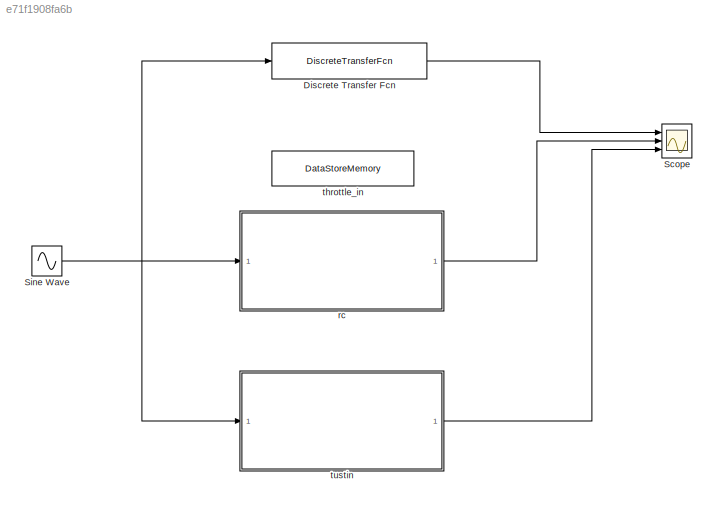
MODEL slx_e71f1908fa6b
KIND model
CONFIG AbsTol = auto
CONFIG EnableMultiTasking = off
CONFIG FixedStep = 0.004
CONFIG MaxStep = auto
CONFIG MinStep = auto
CONFIG RelTol = 1e-3
CONFIG SampleTimeConstraint = Unconstrained
CONFIG Solver = FixedStepAuto
CONFIG SolverName = FixedStepAuto
CONFIG StartTime = 0.0
CONFIG StopTime = 10.0
BLOCK [DiscreteTransferFcn] Discrete Transfer Fcn
  Denominator = ftz.den{1:end}
  InputPortMap = u0
  Numerator = ftz.num{1:end}
  Ports = [1, 1]
BLOCK [Scope] Scope
  Floating = off
  NumInputPorts = 3
  Ports = [3]
  ScopeSpecificationString = Simulink.scopes.TimeScopeBlockCfg('CurrentConfiguration', extmgr.ConfigurationSet(extmgr.Configuration('Core','General UI',true),extmgr.Configuration('Core','Source UI',true),extmgr.Configuration('Sources','WiredSimulink',true),extmgr.Configuration('Visuals','Time Domain',true,'SerializedDisplays',{struct('MinYLimReal','-0.92334','MaxYLimReal','0.95776','YLabelReal','','MinYLimMag','0.00000','MaxY...<+1788ch>
BLOCK [Sin] Sine Wave
  Frequency = 2*pi*40
  Ports = [0, 1]
  SampleTime = 0
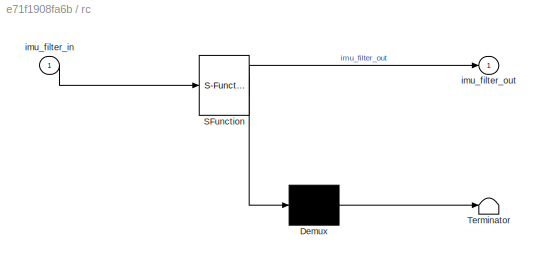
BLOCK [SubSystem] rc
  ErrorFcn = Stateflow.Translate.translate
  PermitHierarchicalResolution = ExplicitOnly
  Ports = [1, 1]
  RequestExecContextInheritance = off
  SFBlockType = MATLAB Function
  TreatAsAtomicUnit = on
BLOCK [Demux] rc/ Demux 
  Outputs = 1
  Ports = [1, 1]
BLOCK [S-Function] rc/ SFunction 
  EnableBusSupport = on
  FunctionName = sf_sfun
  PortCounts = [1 2]
  Ports = [1, 2]
  SFcnIsStateOwnerBlock = off
  SFunctionDeploymentMode = off
  Tag = Stateflow S-Function 2
BLOCK [Terminator] rc/ Terminator 
BLOCK [Inport] rc/imu_filter_in
  IconDisplay = Port number
BLOCK [Outport] rc/imu_filter_out
  IconDisplay = Port number
  VectorParamsAs1DForOutWhenUnconnected = off
BLOCK [DataStoreMemory] throttle_in
  DataStoreName = imu_filt
  InitialValue = imu_filt
  OutDataTypeStr = double
  ReadBeforeWriteMsg = warning
  ShowAdditionalParam = off
  SignalType = real
  VectorParams1D = off
  WriteAfterReadMsg = warning
  WriteAfterWriteMsg = warning
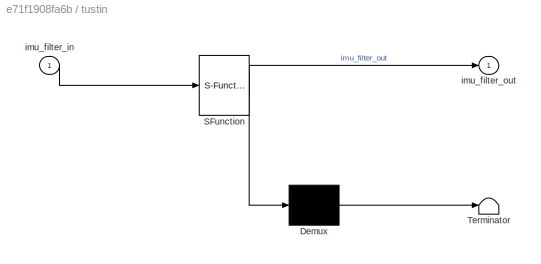
BLOCK [SubSystem] tustin
  ErrorFcn = Stateflow.Translate.translate
  PermitHierarchicalResolution = ExplicitOnly
  Ports = [1, 1]
  RequestExecContextInheritance = off
  SFBlockType = MATLAB Function
  TreatAsAtomicUnit = on
BLOCK [Demux] tustin/ Demux 
  Outputs = 1
  Ports = [1, 1]
BLOCK [S-Function] tustin/ SFunction 
  EnableBusSupport = on
  FunctionName = sf_sfun
  PortCounts = [1 2]
  Ports = [1, 2]
  SFcnIsStateOwnerBlock = off
  SFunctionDeploymentMode = off
  Tag = Stateflow S-Function 1
BLOCK [Terminator] tustin/ Terminator 
BLOCK [Inport] tustin/imu_filter_in
  IconDisplay = Port number
BLOCK [Outport] tustin/imu_filter_out
  IconDisplay = Port number
  VectorParamsAs1DForOutWhenUnconnected = off
LINE Discrete Transfer Fcn:1 -> Scope:1
NET Sine Wave:1 -> Discrete Transfer Fcn:1, rc:1, tustin:1
LINE rc:1 -> Scope:2
LINE tustin:1 -> Scope:3
note: NET lines group one-source signal fan-out (src -> all destinations, sorted); 1:1 wires keep LINE
CHART tustin states=1 transitions=1
  STATE_LABEL 'eML_blk_kernel()'
  STATE_LABEL 'SCRIPT:\nfunction imu_filter_out = imu_filter(imu_filter_in)\n% ftz.num{1:end}\n% ftz.den{1:end}\n% persistent\npersistent imu_filter_in_buff\npersistent imu_filter_out_buff\n    if isempty(imu_filter_in_buff)\n        imu_filter_in_buff = zeros(3,1);\n    end\n    if isempty(imu_filter_out_buff)\n        imu_filter_out_buff = zeros(3,1);\n    end \n    \n    \n\nimu_filter_in_buff(1,:)=imu_filter_in_buff(2,:);\ni...<+589ch>'
CHART rc states=1 transitions=1
  STATE_LABEL 'eML_blk_kernel()'
  STATE_LABEL 'SCRIPT:\nfunction imu_filter_out = imu_filter(imu_filter_in)\n% ftz.num{1:end}\n% ftz.den{1:end}\n% persistent\npersistent imu_filter_temp\npersistent dt\nglobal imu_filt\n    if isempty(imu_filter_temp)\n        imu_filter_temp = zeros(1,1);\n    end\n    \n   if isempty(dt)\n        dt = 0.004;\n    end\n\n  rc=1/(2*pi*imu_filt);\n  alpha=dt/(dt+rc);\n  imu_filter_temp=imu_filter_temp+(imu_filter_in-imu_filter_te...<+903ch>'
